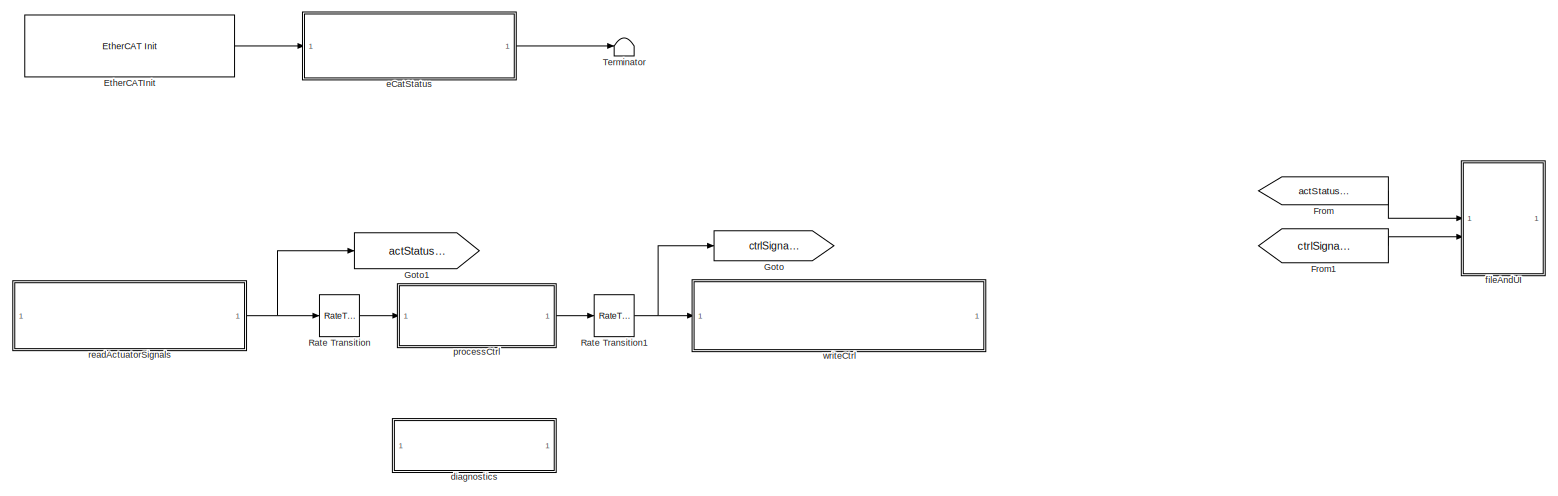
[diagram: root canvas - part 1/1, most of the canvas]
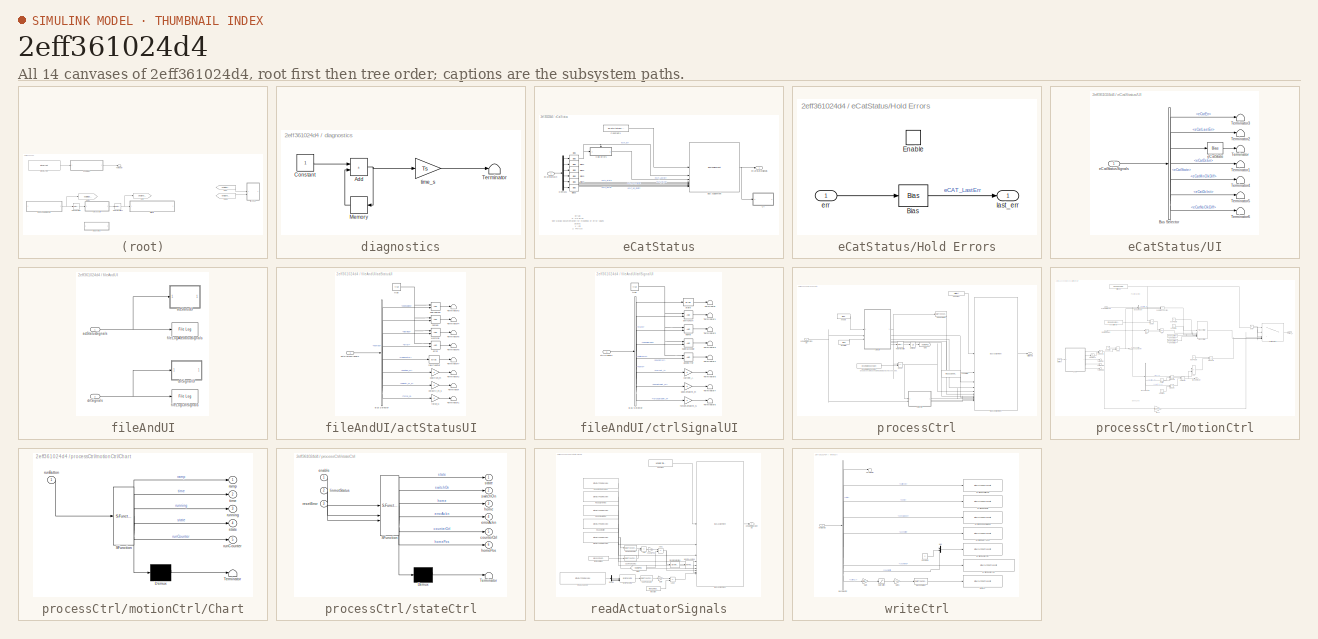
[diagram: thumbnail index - all 14 canvases of the model, root first then tree order]
MODEL slx_2eff361024d4
KIND model
CONFIG AbsTol = auto
CONFIG EnableMultiTasking = off
CONFIG FixedStep = Ts
CONFIG MaxStep = auto
CONFIG MinStep = auto
CONFIG RelTol = 1e-3
CONFIG SampleTimeConstraint = Unconstrained
CONFIG SolverName = FixedStepDiscrete
CONFIG StartTime = 0.0
CONFIG StopTime = inf
BLOCK [Reference] EtherCATInit  REF=slrealtimeethercatlib/EtherCAT Init
  Priority = 0
  SourceBlock = slrealtimeethercatlib/EtherCAT Init
  SourceType = ethercatinit
BLOCK [From] From
  GotoTag = actStatusSignals
BLOCK [From] From1
  GotoTag = ctrlSignals
BLOCK [Goto] Goto
  GotoTag = ctrlSignals
BLOCK [Goto] Goto1
  GotoTag = actStatusSignals
BLOCK [RateTransition] Rate Transition
  OutPortSampleTime = ctrlTs
BLOCK [RateTransition] Rate Transition1
  OutPortSampleTime = Ts
BLOCK [Terminator] Terminator
BLOCK [SubSystem] diagnostics
BLOCK [Sum] diagnostics/Add
  IconShape = rectangular
BLOCK [Constant] diagnostics/Constant
BLOCK [Memory] diagnostics/Memory
  NameLocation = top
BLOCK [Terminator] diagnostics/Terminator
BLOCK [Gain] diagnostics/time_s
  Gain = Ts
BLOCK [SubSystem] eCatStatus
BLOCK [Bias] eCatStatus/Bias
  SaturateOnIntegerOverflow = off
BLOCK [Bias] eCatStatus/Bias1
  SaturateOnIntegerOverflow = off
BLOCK [Bias] eCatStatus/Bias2
  SaturateOnIntegerOverflow = off
BLOCK [Bias] eCatStatus/Bias3
  SaturateOnIntegerOverflow = off
BLOCK [Bias] eCatStatus/Bias4
  SaturateOnIntegerOverflow = off
BLOCK [Bias] eCatStatus/Bias5
  SaturateOnIntegerOverflow = off
BLOCK [BusAssignment] eCatStatus/Bus Assignment
  AssignedSignals = eCatErr,eCatLastErr,eCatState,eCatDcErr,eCatMnClkDiff,eCatDcInit,eCatNsClkDiff
BLOCK [Constant] eCatStatus/Constant1
  OutDataTypeStr = Bus: eCatStatusBus
  Value = eCatStatusStruct
BLOCK [Demux] eCatStatus/Demux1
  Outputs = 6
BLOCK [SubSystem] eCatStatus/Hold Errors
  TreatAsAtomicUnit = on
BLOCK [Bias] eCatStatus/Hold Errors/Bias
  SaturateOnIntegerOverflow = off
BLOCK [EnablePort] eCatStatus/Hold Errors/Enable
BLOCK [Inport] eCatStatus/Hold Errors/err
BLOCK [Outport] eCatStatus/Hold Errors/last_err
BLOCK [SubSystem] eCatStatus/UI
BLOCK [BusSelector] eCatStatus/UI/Bus Selector
  OutputSignals = eCatErr,eCatLastErr,eCatState,eCatDcErr,eCatMnClkDiff,eCatDcInit,eCatNsClkDiff
BLOCK [Terminator] eCatStatus/UI/Terminator
BLOCK [Terminator] eCatStatus/UI/Terminator1
BLOCK [Terminator] eCatStatus/UI/Terminator2
BLOCK [Terminator] eCatStatus/UI/Terminator3
BLOCK [Terminator] eCatStatus/UI/Terminator4
BLOCK [Terminator] eCatStatus/UI/Terminator5
BLOCK [Terminator] eCatStatus/UI/Terminator6
BLOCK [Bias] eCatStatus/UI/eCatState
  Bias = 0.0
  SaturateOnIntegerOverflow = off
BLOCK [Inport] eCatStatus/UI/eCatStatusSignals
  OutDataTypeStr = Bus: eCatStatusBus
BLOCK [Inport] eCatStatus/eCatStatusIn
BLOCK [Outport] eCatStatus/eCatStatusSignals
  OutDataTypeStr = Bus: eCatStatusBus
BLOCK [SubSystem] fileAndUI
BLOCK [Inport] fileAndUI/actStatusSignals
  OutDataTypeStr = Bus: actuatorStatusBus
BLOCK [SubSystem] fileAndUI/actStatusUI
BLOCK [BusSelector] fileAndUI/actStatusUI/Bus Selector
  OutputSignals = opEnabled,homed,warning,error,rawCounter,position_m,velocity_m_s,force_N
BLOCK [Terminator] fileAndUI/actStatusUI/Terminator
BLOCK [Terminator] fileAndUI/actStatusUI/Terminator1
BLOCK [Terminator] fileAndUI/actStatusUI/Terminator2
BLOCK [Terminator] fileAndUI/actStatusUI/Terminator3
BLOCK [Terminator] fileAndUI/actStatusUI/Terminator4
BLOCK [Terminator] fileAndUI/actStatusUI/Terminator5
BLOCK [Terminator] fileAndUI/actStatusUI/Terminator6
BLOCK [Terminator] fileAndUI/actStatusUI/Terminator7
BLOCK [Inport] fileAndUI/actStatusUI/actStatusSignals
  OutDataTypeStr = Bus: actuatorStatusBus
BLOCK [Logic] fileAndUI/actStatusUI/error
  AllPortsSameDT = off
  IconShape = distinctive
  OutDataTypeStr = boolean
BLOCK [Gain] fileAndUI/actStatusUI/force_N
BLOCK [Logic] fileAndUI/actStatusUI/homed
  AllPortsSameDT = off
  IconShape = distinctive
  OutDataTypeStr = boolean
BLOCK [Logic] fileAndUI/actStatusUI/opEnabled
  AllPortsSameDT = off
  IconShape = distinctive
  OutDataTypeStr = boolean
BLOCK [Gain] fileAndUI/actStatusUI/position_m
BLOCK [Bias] fileAndUI/actStatusUI/rawCounter
  SaturateOnIntegerOverflow = off
BLOCK [Constant] fileAndUI/actStatusUI/true
  OutDataTypeStr = boolean
  Value = true
BLOCK [Gain] fileAndUI/actStatusUI/velocity_m_s
BLOCK [Logic] fileAndUI/actStatusUI/warning
  AllPortsSameDT = off
  IconShape = distinctive
  OutDataTypeStr = boolean
BLOCK [SubSystem] fileAndUI/ctrlSignalUI
BLOCK [BusSelector] fileAndUI/ctrlSignalUI/Bus Selector
  OutputSignals = state,switchOn,home,specialMode,acknError,current_A,posSetpoint_m,forceSetpoint_N
BLOCK [Terminator] fileAndUI/ctrlSignalUI/Terminator
BLOCK [Terminator] fileAndUI/ctrlSignalUI/Terminator1
BLOCK [Terminator] fileAndUI/ctrlSignalUI/Terminator2
BLOCK [Terminator] fileAndUI/ctrlSignalUI/Terminator3
BLOCK [Terminator] fileAndUI/ctrlSignalUI/Terminator4
BLOCK [Terminator] fileAndUI/ctrlSignalUI/Terminator5
BLOCK [Terminator] fileAndUI/ctrlSignalUI/Terminator6
BLOCK [Terminator] fileAndUI/ctrlSignalUI/Terminator7
BLOCK [Logic] fileAndUI/ctrlSignalUI/acknError
  AllPortsSameDT = off
  IconShape = distinctive
  OutDataTypeStr = boolean
BLOCK [Inport] fileAndUI/ctrlSignalUI/ctrlSignals
  OutDataTypeStr = Bus: ctrlBus
BLOCK [Gain] fileAndUI/ctrlSignalUI/current_A
BLOCK [Gain] fileAndUI/ctrlSignalUI/forceSetpoint_N
BLOCK [Logic] fileAndUI/ctrlSignalUI/home
  AllPortsSameDT = off
  IconShape = distinctive
  OutDataTypeStr = boolean
BLOCK [Gain] fileAndUI/ctrlSignalUI/posSetpoint_m
BLOCK [Logic] fileAndUI/ctrlSignalUI/specialMode
  AllPortsSameDT = off
  IconShape = distinctive
  OutDataTypeStr = boolean
BLOCK [Bias] fileAndUI/ctrlSignalUI/state
  SaturateOnIntegerOverflow = off
BLOCK [Logic] fileAndUI/ctrlSignalUI/switchOn
  AllPortsSameDT = off
  IconShape = distinctive
  OutDataTypeStr = boolean
BLOCK [Constant] fileAndUI/ctrlSignalUI/true
  OutDataTypeStr = boolean
  Value = true
BLOCK [Inport] fileAndUI/ctrlSignals
  OutDataTypeStr = Bus: ctrlBus
  Port = 2
BLOCK [Reference] fileAndUI/fileLogActStatusSignals  REF=slrealtimeloglib/File Log
  SourceBlock = slrealtimeloglib/File Log
  SourceType = slrealtimeloggingblock
BLOCK [Reference] fileAndUI/fileLogCtrlSignals  REF=slrealtimeloglib/File Log
  SourceBlock = slrealtimeloglib/File Log
  SourceType = slrealtimeloggingblock
BLOCK [SubSystem] processCtrl
BLOCK [BusAssignment] processCtrl/Bus Assignment
  AssignedSignals = state,switchOn,home,specialMode,acknError,counterCtrl,counterVal,current_A,posSetpoint_m,forceSetpoint_N
BLOCK [DataTypeConversion] processCtrl/Cast To uint32
  OutDataTypeStr = uint32
  RndMeth = Floor
  SaturateOnIntegerOverflow = off
BLOCK [Constant] processCtrl/Constant
  OutDataTypeStr = Bus: ctrlBus
  Value = ctrlStruct
BLOCK [Reference] processCtrl/Enumerated Constant  REF=simulink/Sources/Enumerated
Constant
  SourceBlock = simulink/Sources/Enumerated\nConstant
  SourceType = Enumerated Constant
BLOCK [RelationalOperator] processCtrl/Equal
  InputSameDT = off
  Operator = ==
  OutDataTypeStr = boolean
  RndMeth = Simplest
BLOCK [Goto] processCtrl/Goto
  GotoTag = homePos
  TagVisibility = global
BLOCK [RateTransition] processCtrl/Rate Transition
  OutPortSampleTime = Ts
BLOCK [UnitDelay] processCtrl/Unit Delay
  HasFrameUpgradeWarning = on
  SampleTime = -1
BLOCK [Inport] processCtrl/actuatorStatusSignals
BLOCK [Constant] processCtrl/counterInit
  OutDataTypeStr = uint32
  Value = el5101CounterInitVal
BLOCK [Outport] processCtrl/ctrlSignals
  OutDataTypeStr = Bus: ctrlBus
BLOCK [Constant] processCtrl/enable
  OutDataTypeStr = boolean
  Value = false
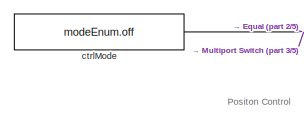
[diagram: processCtrl/motionCtrl - part 1/5, top left region]
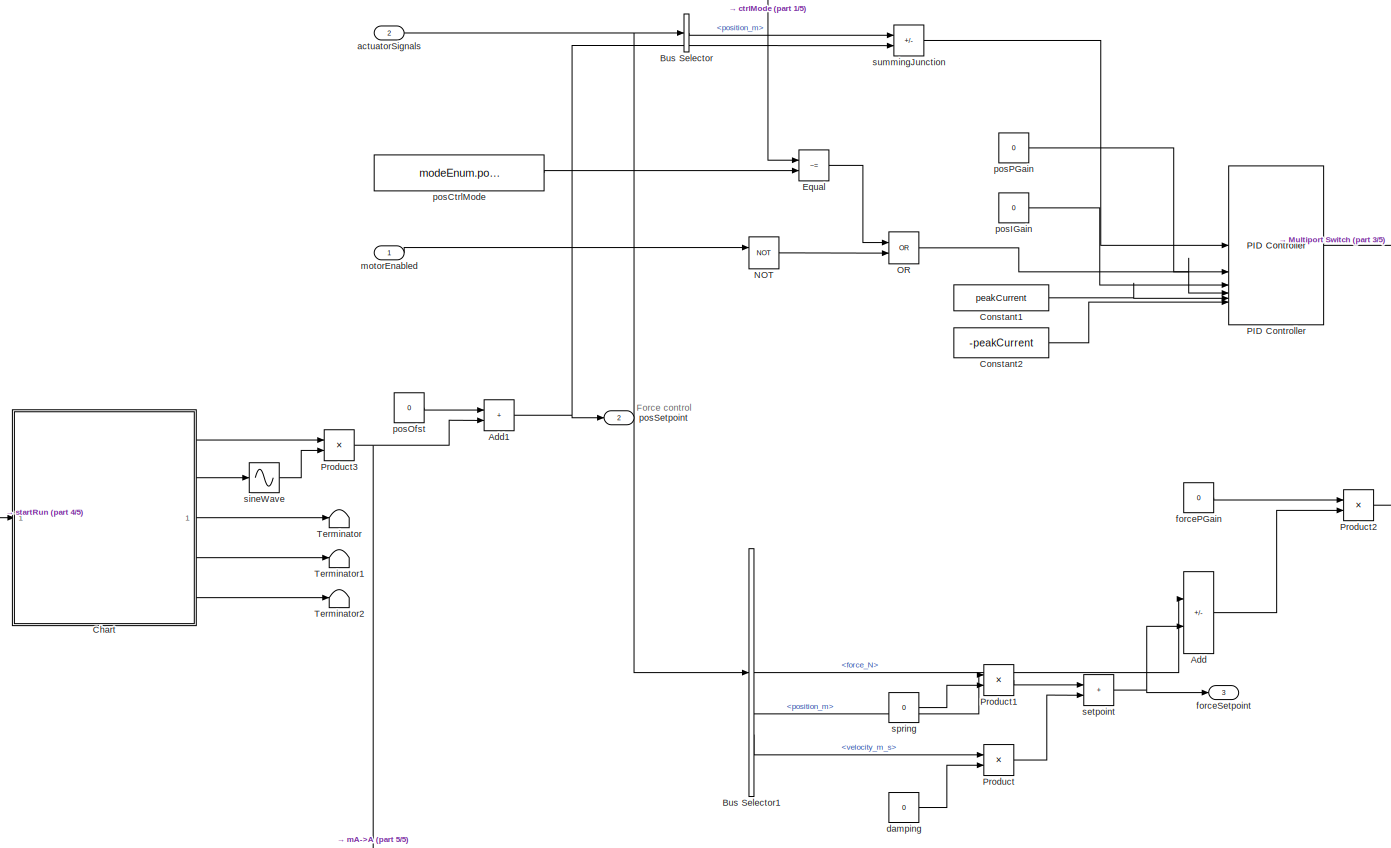
[diagram: processCtrl/motionCtrl - part 2/5, central region]
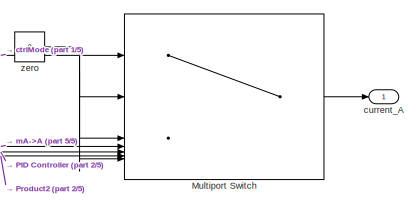
[diagram: processCtrl/motionCtrl - part 3/5, middle right region]
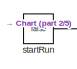
[diagram: processCtrl/motionCtrl - part 4/5, middle left region]
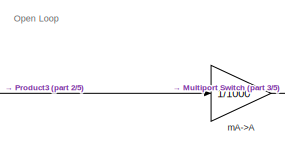
[diagram: processCtrl/motionCtrl - part 5/5, bottom center region]
BLOCK [SubSystem] processCtrl/motionCtrl
BLOCK [Sum] processCtrl/motionCtrl/Add
  IconShape = rectangular
  Inputs = +-
BLOCK [Sum] processCtrl/motionCtrl/Add1
  IconShape = rectangular
BLOCK [BusSelector] processCtrl/motionCtrl/Bus Selector
  OutputSignals = position_m
BLOCK [BusSelector] processCtrl/motionCtrl/Bus Selector1
  OutputSignals = force_N,position_m,velocity_m_s
BLOCK [SubSystem] processCtrl/motionCtrl/Chart
  ErrorFcn = Stateflow.Translate.translate
  PermitHierarchicalResolution = ExplicitOnly
  SFBlockType = Chart
  TreatAsAtomicUnit = on
BLOCK [Demux] processCtrl/motionCtrl/Chart/ Demux 
  Outputs = 1
BLOCK [S-Function] processCtrl/motionCtrl/Chart/ SFunction 
  EnableBusSupport = on
  FunctionName = sf_sfun
  Parameters = RampTime
  PortCounts = [1 6]
  SFcnIsStateOwnerBlock = off
  SFunctionDeploymentMode = off
  Tag = Stateflow S-Function 1
BLOCK [Terminator] processCtrl/motionCtrl/Chart/ Terminator 
BLOCK [Outport] processCtrl/motionCtrl/Chart/ramp
BLOCK [Inport] processCtrl/motionCtrl/Chart/runButton
BLOCK [Outport] processCtrl/motionCtrl/Chart/runCounter
  Port = 5
BLOCK [Outport] processCtrl/motionCtrl/Chart/running
  Port = 3
BLOCK [Outport] processCtrl/motionCtrl/Chart/state
  Port = 4
BLOCK [Outport] processCtrl/motionCtrl/Chart/time
  Port = 2
BLOCK [Constant] processCtrl/motionCtrl/Constant1
  Value = peakCurrent
BLOCK [Constant] processCtrl/motionCtrl/Constant2
  Value = -peakCurrent
BLOCK [RelationalOperator] processCtrl/motionCtrl/Equal
  InputSameDT = off
  Operator = ~=
  OutDataTypeStr = boolean
  RndMeth = Simplest
BLOCK [MultiPortSwitch] processCtrl/motionCtrl/Multiport Switch
  DataPortForDefault = Additional data port
  DataPortIndices = {modeEnum.undefined,modeEnum.off,modeEnum.openLoop,modeEnum.posCtrl,modeEnum.forceCtrl}
  DataPortOrder = Specify indices
  InputSameDT = off
  SaturateOnIntegerOverflow = off
BLOCK [Logic] processCtrl/motionCtrl/NOT
  AllPortsSameDT = off
  IconShape = distinctive
  Operator = NOT
  OutDataTypeStr = boolean
BLOCK [Logic] processCtrl/motionCtrl/OR
  AllPortsSameDT = off
  IconShape = distinctive
  Operator = OR
  OutDataTypeStr = boolean
BLOCK [Reference] processCtrl/motionCtrl/PID Controller  REF=slpidlib/PID Controller
  LibrarySourceBlock = simulink/Continuous/PID Controller
  SourceBlock = slpidlib/PID Controller
  SourceType = PID 1dof
BLOCK [Product] processCtrl/motionCtrl/Product
BLOCK [Product] processCtrl/motionCtrl/Product1
BLOCK [Product] processCtrl/motionCtrl/Product2
BLOCK [Product] processCtrl/motionCtrl/Product3
BLOCK [Terminator] processCtrl/motionCtrl/Terminator
BLOCK [Terminator] processCtrl/motionCtrl/Terminator1
BLOCK [Terminator] processCtrl/motionCtrl/Terminator2
BLOCK [Inport] processCtrl/motionCtrl/actuatorSignals
  OutDataTypeStr = Bus: actuatorStatusBus
  Port = 2
BLOCK [Constant] processCtrl/motionCtrl/ctrlMode
  OutDataTypeStr = Enum: modeEnum
  Value = modeEnum.off
BLOCK [Outport] processCtrl/motionCtrl/current_A
BLOCK [Constant] processCtrl/motionCtrl/damping
  Value = 0
BLOCK [Constant] processCtrl/motionCtrl/forcePGain
  Value = 0
BLOCK [Outport] processCtrl/motionCtrl/forceSetpoint
  Port = 3
BLOCK [Gain] processCtrl/motionCtrl/mA->A
  Gain = 1/1000
BLOCK [Inport] processCtrl/motionCtrl/motorEnabled
BLOCK [Constant] processCtrl/motionCtrl/posCtrlMode
  OutDataTypeStr = Enum: modeEnum
  Value = modeEnum.posCtrl
BLOCK [Constant] processCtrl/motionCtrl/posIGain
  Value = 0
BLOCK [Constant] processCtrl/motionCtrl/posOfst
  Value = 0
BLOCK [Constant] processCtrl/motionCtrl/posPGain
  Value = 0
BLOCK [Outport] processCtrl/motionCtrl/posSetpoint
  Port = 2
BLOCK [Sum] processCtrl/motionCtrl/setpoint
  IconShape = rectangular
BLOCK [Sin] processCtrl/motionCtrl/sineWave
  Amplitude = 0
  Frequency = 0.5
  SampleTime = 0
  TimeSource = Use external signal
BLOCK [Constant] processCtrl/motionCtrl/spring
  Value = 0
BLOCK [Constant] processCtrl/motionCtrl/startRun
  OutDataTypeStr = boolean
  Value = false
BLOCK [Sum] processCtrl/motionCtrl/summingJunction
  IconShape = rectangular
  Inputs = -+
BLOCK [Constant] processCtrl/motionCtrl/zero
  Value = 0
BLOCK [Constant] processCtrl/resetError
  OutDataTypeStr = boolean
  Value = false
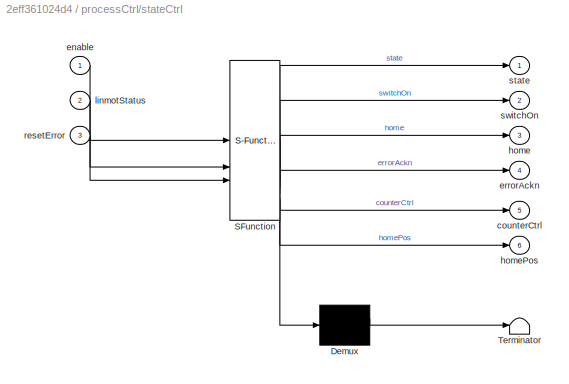
BLOCK [SubSystem] processCtrl/stateCtrl
  ErrorFcn = Stateflow.Translate.translate
  PermitHierarchicalResolution = ExplicitOnly
  SFBlockType = Chart
  TreatAsAtomicUnit = on
BLOCK [Demux] processCtrl/stateCtrl/ Demux 
  Outputs = 1
BLOCK [S-Function] processCtrl/stateCtrl/ SFunction 
  EnableBusSupport = on
  FunctionName = sf_sfun
  Parameters = el5101SetCounterCmd
  PortCounts = [3 7]
  SFcnIsStateOwnerBlock = off
  SFunctionDeploymentMode = off
  Tag = Stateflow S-Function 3
BLOCK [Terminator] processCtrl/stateCtrl/ Terminator 
BLOCK [Outport] processCtrl/stateCtrl/counterCtrl
  Port = 5
BLOCK [Inport] processCtrl/stateCtrl/enable
BLOCK [Outport] processCtrl/stateCtrl/errorAckn
  Port = 4
BLOCK [Outport] processCtrl/stateCtrl/home
  Port = 3
BLOCK [Outport] processCtrl/stateCtrl/homePos
  Port = 6
BLOCK [Inport] processCtrl/stateCtrl/linmotStatus
  Port = 2
BLOCK [Inport] processCtrl/stateCtrl/resetError
  Port = 3
BLOCK [Outport] processCtrl/stateCtrl/state
BLOCK [Outport] processCtrl/stateCtrl/switchOn
  Port = 2
BLOCK [SubSystem] readActuatorSignals
BLOCK [Sum] readActuatorSignals/Add
  IconShape = rectangular
  Inputs = +-
BLOCK [Sum] readActuatorSignals/Add1
  IconShape = rectangular
  Inputs = +-
BLOCK [Sum] readActuatorSignals/Add2
  IconShape = rectangular
  Inputs = +-
BLOCK [BusAssignment] readActuatorSignals/Bus Assignment
  AssignedSignals = opEnabled,homed,warning,error,rawCounter,position_m,velocity_m_s,force_N
BLOCK [Reference] readActuatorSignals/Byte Packing  REF=slrealtimeutilitieslib/Byte Packing
  SourceBlock = slrealtimeutilitieslib/Byte Packing
  SourceType = slrealtimebytepacking
BLOCK [DataTypeConversion] readActuatorSignals/Cast To Double
  OutDataTypeStr = double
  RndMeth = Floor
  SaturateOnIntegerOverflow = off
BLOCK [DataTypeConversion] readActuatorSignals/Cast To Double1
  OutDataTypeStr = double
  RndMeth = Floor
  SaturateOnIntegerOverflow = off
BLOCK [DataTypeConversion] readActuatorSignals/Cast To Double2
  OutDataTypeStr = double
  RndMeth = Floor
  SaturateOnIntegerOverflow = off
BLOCK [Constant] readActuatorSignals/Constant
  OutDataTypeStr = Bus: actuatorStatusBus
  Value = actuatorStatusStruct
BLOCK [Demux] readActuatorSignals/Demux
BLOCK [Reference] readActuatorSignals/Discrete Derivative  REF=simulink/Discrete/Discrete Derivative
  SourceBlock = simulink/Discrete/Discrete Derivative
  SourceType = Discrete Derivative
BLOCK [Reference] readActuatorSignals/EtherCAT PDO Receive  REF=slrealtimeethercatlib/EtherCAT PDO Receive
  Priority = 2
  SourceBlock = slrealtimeethercatlib/EtherCAT PDO Receive
  SourceType = ethercat_pdo_receive
BLOCK [From] readActuatorSignals/From
  GotoTag = homePos
  TagVisibility = global
BLOCK [Gain] readActuatorSignals/Gain
  Gain = loadCellScale
BLOCK [Reference] readActuatorSignals/Moving Average  REF=dspstat3/Moving
Average
  SourceBlock = dspstat3/Moving\nAverage
  SourceType = dsp.simulink.MovingAverage
BLOCK [Reference] readActuatorSignals/ReadDI1OpEnabled  REF=slrealtimeethercatlib/EtherCAT PDO Receive
  Priority = 2
  SourceBlock = slrealtimeethercatlib/EtherCAT PDO Receive
  SourceType = ethercat_pdo_receive
BLOCK [Reference] readActuatorSignals/ReadDI2Homed  REF=slrealtimeethercatlib/EtherCAT PDO Receive
  Priority = 2
  SourceBlock = slrealtimeethercatlib/EtherCAT PDO Receive
  SourceType = ethercat_pdo_receive
BLOCK [Reference] readActuatorSignals/ReadDI3Warning  REF=slrealtimeethercatlib/EtherCAT PDO Receive
  Priority = 2
  SourceBlock = slrealtimeethercatlib/EtherCAT PDO Receive
  SourceType = ethercat_pdo_receive
BLOCK [Reference] readActuatorSignals/ReadDI4Error  REF=slrealtimeethercatlib/EtherCAT PDO Receive
  Priority = 2
  SourceBlock = slrealtimeethercatlib/EtherCAT PDO Receive
  SourceType = ethercat_pdo_receive
BLOCK [Reference] readActuatorSignals/ReadLoadCell  REF=slrealtimeethercatlib/EtherCAT PDO Receive
  Priority = 2
  SourceBlock = slrealtimeethercatlib/EtherCAT PDO Receive
  SourceType = ethercat_pdo_receive
BLOCK [Outport] readActuatorSignals/actuatorStatusSignals
  OutDataTypeStr = Bus: actuatorStatusBus
BLOCK [Gain] readActuatorSignals/count2Pos
  Gain = encoderPosGain
BLOCK [Constant] readActuatorSignals/forceOfst
  Value = forceZeroOfst
BLOCK [Constant] readActuatorSignals/removeInitVal
  Value = el5101CounterInitVal
BLOCK [SubSystem] writeCtrl
BLOCK [BusSelector] writeCtrl/Bus Selector
  OutputSignals = state,switchOn,home,specialMode,acknError,counterCtrl,counterVal,current_A
BLOCK [Constant] writeCtrl/Constant1
  OutDataTypeStr = uint8
  Value = 0
BLOCK [Gain] writeCtrl/Gain
  Gain = ctrlSignalScale
BLOCK [Gain] writeCtrl/Gain1
  Gain = 2^15/10
BLOCK [Mux] writeCtrl/Mux
  DisplayOption = bar
  Inputs = 2
BLOCK [Saturate] writeCtrl/Saturation
  LowerLimit = -10
  UpperLimit = 10
BLOCK [Terminator] writeCtrl/Terminator
BLOCK [Reference] writeCtrl/WriteCounterCtrl  REF=slrealtimeethercatlib/EtherCAT PDO Transmit
  Priority = 3
  SourceBlock = slrealtimeethercatlib/EtherCAT PDO Transmit
  SourceType = ethercat_pdo_send
BLOCK [Reference] writeCtrl/WriteCounterVal  REF=slrealtimeethercatlib/EtherCAT PDO Transmit
  Priority = 3
  SourceBlock = slrealtimeethercatlib/EtherCAT PDO Transmit
  SourceType = ethercat_pdo_send
BLOCK [Reference] writeCtrl/WriteDO1SwitchOn  REF=slrealtimeethercatlib/EtherCAT PDO Transmit
  Priority = 3
  SourceBlock = slrealtimeethercatlib/EtherCAT PDO Transmit
  SourceType = ethercat_pdo_send
BLOCK [Reference] writeCtrl/WriteDO2Home  REF=slrealtimeethercatlib/EtherCAT PDO Transmit
  Priority = 3
  SourceBlock = slrealtimeethercatlib/EtherCAT PDO Transmit
  SourceType = ethercat_pdo_send
BLOCK [Reference] writeCtrl/WriteDO3SpecialMode  REF=slrealtimeethercatlib/EtherCAT PDO Transmit
  Priority = 3
  SourceBlock = slrealtimeethercatlib/EtherCAT PDO Transmit
  SourceType = ethercat_pdo_send
BLOCK [Reference] writeCtrl/WriteDO4ErrAckn  REF=slrealtimeethercatlib/EtherCAT PDO Transmit
  Priority = 3
  SourceBlock = slrealtimeethercatlib/EtherCAT PDO Transmit
  SourceType = ethercat_pdo_send
BLOCK [Inport] writeCtrl/ctrlSignals
  OutDataTypeStr = Bus: ctrlBus
BLOCK [DataTypeConversion] writeCtrl/el4132Output
  OutDataTypeStr = int16
  OutMax = 2^15-1
  OutMin = -2^15+1
  RndMeth = Floor
BLOCK [Reference] writeCtrl/writeAO  REF=slrealtimeethercatlib/EtherCAT PDO Transmit
  Priority = 3
  SourceBlock = slrealtimeethercatlib/EtherCAT PDO Transmit
  SourceType = ethercat_pdo_send
ANNOTATION eCatStatus: ErrVal: 0: No error See Matlab documentation for meanings of error values States: 1: Init 2: Pre-Op 4: Safe_Op 8: Op DCErrVal: 0: No error (or distributed clocks not enabled) MasterToNetworkClkDiff: #: Difference in nanoseconds between master and first slave clocks DCInitState: 0: Not initialized (or not enabled in xml) 1: Started NetworkToSlaveClkDiff: #: Difference in nanoseconds between first s...<+30ch>
ANNOTATION processCtrl: Enable special mode. Hold integrator at zero unless enabled.
ANNOTATION processCtrl/motionCtrl: Force control
ANNOTATION processCtrl/motionCtrl: Open Loop
ANNOTATION processCtrl/motionCtrl: Positon Control
LINE EtherCATInit:1 -> eCatStatus:1
LINE From1:1 -> fileAndUI:2
LINE From:1 -> fileAndUI:1
NET Rate Transition1:1 -> Goto:1, writeCtrl:1
LINE Rate Transition:1 -> processCtrl:1
NET diagnostics/Add:1 -> diagnostics/Memory:1, diagnostics/time_s:1
LINE diagnostics/Constant:1 -> diagnostics/Add:1
LINE diagnostics/Memory:1 -> diagnostics/Add:2
LINE diagnostics/time_s:1 -> diagnostics/Terminator:1
LINE eCatStatus/Bias1:1 -> eCatStatus/Bus Assignment:4
LINE eCatStatus/Bias2:1 -> eCatStatus/Bus Assignment:5
LINE eCatStatus/Bias3:1 -> eCatStatus/Bus Assignment:6
LINE eCatStatus/Bias4:1 -> eCatStatus/Bus Assignment:7
LINE eCatStatus/Bias5:1 -> eCatStatus/Bus Assignment:8
NET eCatStatus/Bias:1 -> eCatStatus/Bus Assignment:2, eCatStatus/Hold Errors:1, eCatStatus/Hold Errors:enable
NET eCatStatus/Bus Assignment:1 -> eCatStatus/UI:1, eCatStatus/eCatStatusSignals:1
LINE eCatStatus/Constant1:1 -> eCatStatus/Bus Assignment:1
LINE eCatStatus/Demux1:1 -> eCatStatus/Bias:1
LINE eCatStatus/Demux1:2 -> eCatStatus/Bias1:1
LINE eCatStatus/Demux1:3 -> eCatStatus/Bias2:1
LINE eCatStatus/Demux1:4 -> eCatStatus/Bias3:1
LINE eCatStatus/Demux1:5 -> eCatStatus/Bias4:1
LINE eCatStatus/Demux1:6 -> eCatStatus/Bias5:1
LINE eCatStatus/Hold Errors/Bias:1 -> eCatStatus/Hold Errors/last_err:1
LINE eCatStatus/Hold Errors/err:1 -> eCatStatus/Hold Errors/Bias:1
LINE eCatStatus/Hold Errors:1 -> eCatStatus/Bus Assignment:3
LINE eCatStatus/UI/Bus Selector:1 -> eCatStatus/UI/Terminator3:1
LINE eCatStatus/UI/Bus Selector:2 -> eCatStatus/UI/Terminator2:1
LINE eCatStatus/UI/Bus Selector:3 -> eCatStatus/UI/eCatState:1
LINE eCatStatus/UI/Bus Selector:4 -> eCatStatus/UI/Terminator1:1
LINE eCatStatus/UI/Bus Selector:5 -> eCatStatus/UI/Terminator4:1
LINE eCatStatus/UI/Bus Selector:6 -> eCatStatus/UI/Terminator5:1
LINE eCatStatus/UI/Bus Selector:7 -> eCatStatus/UI/Terminator6:1
LINE eCatStatus/UI/eCatState:1 -> eCatStatus/UI/Terminator:1
LINE eCatStatus/UI/eCatStatusSignals:1 -> eCatStatus/UI/Bus Selector:1
LINE eCatStatus/eCatStatusIn:1 -> eCatStatus/Demux1:1
LINE eCatStatus:1 -> Terminator:1
NET fileAndUI/actStatusSignals:1 -> fileAndUI/actStatusUI:1, fileAndUI/fileLogActStatusSignals:1
LINE fileAndUI/actStatusUI/Bus Selector:1 -> fileAndUI/actStatusUI/opEnabled:2
LINE fileAndUI/actStatusUI/Bus Selector:2 -> fileAndUI/actStatusUI/homed:2
LINE fileAndUI/actStatusUI/Bus Selector:3 -> fileAndUI/actStatusUI/warning:2
LINE fileAndUI/actStatusUI/Bus Selector:4 -> fileAndUI/actStatusUI/error:2
LINE fileAndUI/actStatusUI/Bus Selector:5 -> fileAndUI/actStatusUI/rawCounter:1
LINE fileAndUI/actStatusUI/Bus Selector:6 -> fileAndUI/actStatusUI/position_m:1
LINE fileAndUI/actStatusUI/Bus Selector:7 -> fileAndUI/actStatusUI/velocity_m_s:1
LINE fileAndUI/actStatusUI/Bus Selector:8 -> fileAndUI/actStatusUI/force_N:1
LINE fileAndUI/actStatusUI/actStatusSignals:1 -> fileAndUI/actStatusUI/Bus Selector:1
LINE fileAndUI/actStatusUI/error:1 -> fileAndUI/actStatusUI/Terminator6:1
LINE fileAndUI/actStatusUI/force_N:1 -> fileAndUI/actStatusUI/Terminator1:1
LINE fileAndUI/actStatusUI/homed:1 -> fileAndUI/actStatusUI/Terminator4:1
LINE fileAndUI/actStatusUI/opEnabled:1 -> fileAndUI/actStatusUI/Terminator3:1
LINE fileAndUI/actStatusUI/position_m:1 -> fileAndUI/actStatusUI/Terminator2:1
LINE fileAndUI/actStatusUI/rawCounter:1 -> fileAndUI/actStatusUI/Terminator7:1
NET fileAndUI/actStatusUI/true:1 -> fileAndUI/actStatusUI/error:1, fileAndUI/actStatusUI/homed:1, fileAndUI/actStatusUI/opEnabled:1, fileAndUI/actStatusUI/warning:1
LINE fileAndUI/actStatusUI/velocity_m_s:1 -> fileAndUI/actStatusUI/Terminator:1
LINE fileAndUI/actStatusUI/warning:1 -> fileAndUI/actStatusUI/Terminator5:1
LINE fileAndUI/ctrlSignalUI/Bus Selector:1 -> fileAndUI/ctrlSignalUI/state:1
LINE fileAndUI/ctrlSignalUI/Bus Selector:2 -> fileAndUI/ctrlSignalUI/switchOn:2
LINE fileAndUI/ctrlSignalUI/Bus Selector:3 -> fileAndUI/ctrlSignalUI/home:2
LINE fileAndUI/ctrlSignalUI/Bus Selector:4 -> fileAndUI/ctrlSignalUI/specialMode:2
LINE fileAndUI/ctrlSignalUI/Bus Selector:5 -> fileAndUI/ctrlSignalUI/acknError:2
LINE fileAndUI/ctrlSignalUI/Bus Selector:6 -> fileAndUI/ctrlSignalUI/current_A:1
LINE fileAndUI/ctrlSignalUI/Bus Selector:7 -> fileAndUI/ctrlSignalUI/posSetpoint_m:1
LINE fileAndUI/ctrlSignalUI/Bus Selector:8 -> fileAndUI/ctrlSignalUI/forceSetpoint_N:1
LINE fileAndUI/ctrlSignalUI/acknError:1 -> fileAndUI/ctrlSignalUI/Terminator4:1
LINE fileAndUI/ctrlSignalUI/ctrlSignals:1 -> fileAndUI/ctrlSignalUI/Bus Selector:1
LINE fileAndUI/ctrlSignalUI/current_A:1 -> fileAndUI/ctrlSignalUI/Terminator5:1
LINE fileAndUI/ctrlSignalUI/forceSetpoint_N:1 -> fileAndUI/ctrlSignalUI/Terminator6:1
LINE fileAndUI/ctrlSignalUI/home:1 -> fileAndUI/ctrlSignalUI/Terminator2:1
LINE fileAndUI/ctrlSignalUI/posSetpoint_m:1 -> fileAndUI/ctrlSignalUI/Terminator7:1
LINE fileAndUI/ctrlSignalUI/specialMode:1 -> fileAndUI/ctrlSignalUI/Terminator3:1
LINE fileAndUI/ctrlSignalUI/state:1 -> fileAndUI/ctrlSignalUI/Terminator:1
LINE fileAndUI/ctrlSignalUI/switchOn:1 -> fileAndUI/ctrlSignalUI/Terminator1:1
NET fileAndUI/ctrlSignalUI/true:1 -> fileAndUI/ctrlSignalUI/acknError:1, fileAndUI/ctrlSignalUI/home:1, fileAndUI/ctrlSignalUI/specialMode:1, fileAndUI/ctrlSignalUI/switchOn:1
NET fileAndUI/ctrlSignals:1 -> fileAndUI/ctrlSignalUI:1, fileAndUI/fileLogCtrlSignals:1
LINE processCtrl/Bus Assignment:1 -> processCtrl/ctrlSignals:1
LINE processCtrl/Cast To uint32:1 -> processCtrl/Bus Assignment:2
LINE processCtrl/Constant:1 -> processCtrl/Bus Assignment:1
LINE processCtrl/Enumerated Constant:1 -> processCtrl/Equal:2
NET processCtrl/Equal:1 -> processCtrl/Bus Assignment:5, processCtrl/motionCtrl:1
LINE processCtrl/Rate Transition:1 -> processCtrl/Unit Delay:1
LINE processCtrl/Unit Delay:1 -> processCtrl/Goto:1
NET processCtrl/actuatorStatusSignals:1 -> processCtrl/motionCtrl:2, processCtrl/stateCtrl:2
LINE processCtrl/counterInit:1 -> processCtrl/Bus Assignment:8
LINE processCtrl/enable:1 -> processCtrl/stateCtrl:1
NET processCtrl/motionCtrl/Add1:1 -> processCtrl/motionCtrl/posSetpoint:1, processCtrl/motionCtrl/summingJunction:2
LINE processCtrl/motionCtrl/Add:1 -> processCtrl/motionCtrl/Product2:2
LINE processCtrl/motionCtrl/Bus Selector1:1 -> processCtrl/motionCtrl/Add:1
LINE processCtrl/motionCtrl/Bus Selector1:2 -> processCtrl/motionCtrl/Product1:1
LINE processCtrl/motionCtrl/Bus Selector1:3 -> processCtrl/motionCtrl/Product:1
LINE processCtrl/motionCtrl/Bus Selector:1 -> processCtrl/motionCtrl/summingJunction:1
LINE processCtrl/motionCtrl/Chart:1 -> processCtrl/motionCtrl/Product3:1
LINE processCtrl/motionCtrl/Chart:2 -> processCtrl/motionCtrl/sineWave:1
LINE processCtrl/motionCtrl/Chart:3 -> processCtrl/motionCtrl/Terminator:1
LINE processCtrl/motionCtrl/Chart:4 -> processCtrl/motionCtrl/Terminator1:1
LINE processCtrl/motionCtrl/Chart:5 -> processCtrl/motionCtrl/Terminator2:1
LINE processCtrl/motionCtrl/Constant1:1 -> processCtrl/motionCtrl/PID Controller:5
LINE processCtrl/motionCtrl/Constant2:1 -> processCtrl/motionCtrl/PID Controller:6
LINE processCtrl/motionCtrl/Equal:1 -> processCtrl/motionCtrl/OR:1
LINE processCtrl/motionCtrl/Multiport Switch:1 -> processCtrl/motionCtrl/current_A:1
LINE processCtrl/motionCtrl/NOT:1 -> processCtrl/motionCtrl/OR:2
LINE processCtrl/motionCtrl/OR:1 -> processCtrl/motionCtrl/PID Controller:4
LINE processCtrl/motionCtrl/PID Controller:1 -> processCtrl/motionCtrl/Multiport Switch:5
LINE processCtrl/motionCtrl/Product1:1 -> processCtrl/motionCtrl/setpoint:1
LINE processCtrl/motionCtrl/Product2:1 -> processCtrl/motionCtrl/Multiport Switch:6
NET processCtrl/motionCtrl/Product3:1 -> processCtrl/motionCtrl/Add1:2, processCtrl/motionCtrl/mA->A:1
LINE processCtrl/motionCtrl/Product:1 -> processCtrl/motionCtrl/setpoint:2
NET processCtrl/motionCtrl/actuatorSignals:1 -> processCtrl/motionCtrl/Bus Selector1:1, processCtrl/motionCtrl/Bus Selector:1
NET processCtrl/motionCtrl/ctrlMode:1 -> processCtrl/motionCtrl/Equal:1, processCtrl/motionCtrl/Multiport Switch:1
LINE processCtrl/motionCtrl/damping:1 -> processCtrl/motionCtrl/Product:2
LINE processCtrl/motionCtrl/forcePGain:1 -> processCtrl/motionCtrl/Product2:1
LINE processCtrl/motionCtrl/mA->A:1 -> processCtrl/motionCtrl/Multiport Switch:4
LINE processCtrl/motionCtrl/motorEnabled:1 -> processCtrl/motionCtrl/NOT:1
LINE processCtrl/motionCtrl/posCtrlMode:1 -> processCtrl/motionCtrl/Equal:2
LINE processCtrl/motionCtrl/posIGain:1 -> processCtrl/motionCtrl/PID Controller:3
LINE processCtrl/motionCtrl/posOfst:1 -> processCtrl/motionCtrl/Add1:1
LINE processCtrl/motionCtrl/posPGain:1 -> processCtrl/motionCtrl/PID Controller:2
NET processCtrl/motionCtrl/setpoint:1 -> processCtrl/motionCtrl/Add:2, processCtrl/motionCtrl/forceSetpoint:1
LINE processCtrl/motionCtrl/sineWave:1 -> processCtrl/motionCtrl/Product3:2
LINE processCtrl/motionCtrl/spring:1 -> processCtrl/motionCtrl/Product1:2
LINE processCtrl/motionCtrl/startRun:1 -> processCtrl/motionCtrl/Chart:1
LINE processCtrl/motionCtrl/summingJunction:1 -> processCtrl/motionCtrl/PID Controller:1
NET processCtrl/motionCtrl/zero:1 -> processCtrl/motionCtrl/Multiport Switch:2, processCtrl/motionCtrl/Multiport Switch:3, processCtrl/motionCtrl/Multiport Switch:7
LINE processCtrl/motionCtrl:1 -> processCtrl/Bus Assignment:9
LINE processCtrl/motionCtrl:2 -> processCtrl/Bus Assignment:10
LINE processCtrl/motionCtrl:3 -> processCtrl/Bus Assignment:11
LINE processCtrl/resetError:1 -> processCtrl/stateCtrl:3
NET processCtrl/stateCtrl:1 -> processCtrl/Cast To uint32:1, processCtrl/Equal:1
LINE processCtrl/stateCtrl:2 -> processCtrl/Bus Assignment:3
LINE processCtrl/stateCtrl:3 -> processCtrl/Bus Assignment:4
LINE processCtrl/stateCtrl:4 -> processCtrl/Bus Assignment:6
LINE processCtrl/stateCtrl:5 -> processCtrl/Bus Assignment:7
LINE processCtrl/stateCtrl:6 -> processCtrl/Rate Transition:1
LINE processCtrl:1 -> Rate Transition1:1
NET readActuatorSignals/Add1:1 -> readActuatorSignals/Bus Assignment:7, readActuatorSignals/Discrete Derivative:1
LINE readActuatorSignals/Add2:1 -> readActuatorSignals/Bus Assignment:9
LINE readActuatorSignals/Add:1 -> readActuatorSignals/count2Pos:1
LINE readActuatorSignals/Bus Assignment:1 -> readActuatorSignals/actuatorStatusSignals:1
LINE readActuatorSignals/Byte Packing:1 -> readActuatorSignals/Cast To Double:1
LINE readActuatorSignals/Cast To Double1:1 -> readActuatorSignals/Add:1
LINE readActuatorSignals/Cast To Double2:1 -> readActuatorSignals/Add:2
LINE readActuatorSignals/Cast To Double:1 -> readActuatorSignals/Gain:1
LINE readActuatorSignals/Constant:1 -> readActuatorSignals/Bus Assignment:1
LINE readActuatorSignals/Demux:1 -> readActuatorSignals/Byte Packing:1
LINE readActuatorSignals/Demux:2 -> readActuatorSignals/Byte Packing:2
LINE readActuatorSignals/Demux:3 -> readActuatorSignals/Byte Packing:3
LINE readActuatorSignals/Demux:4 -> readActuatorSignals/Byte Packing:4
LINE readActuatorSignals/Discrete Derivative:1 -> readActuatorSignals/Moving Average:1
NET readActuatorSignals/EtherCAT PDO Receive:1 -> readActuatorSignals/Bus Assignment:6, readActuatorSignals/Cast To Double1:1
LINE readActuatorSignals/From:1 -> readActuatorSignals/Add1:2
LINE readActuatorSignals/Gain:1 -> readActuatorSignals/Add2:1
LINE readActuatorSignals/Moving Average:1 -> readActuatorSignals/Bus Assignment:8
LINE readActuatorSignals/ReadDI1OpEnabled:1 -> readActuatorSignals/Bus Assignment:2
LINE readActuatorSignals/ReadDI2Homed:1 -> readActuatorSignals/Bus Assignment:3
LINE readActuatorSignals/ReadDI3Warning:1 -> readActuatorSignals/Bus Assignment:4
LINE readActuatorSignals/ReadDI4Error:1 -> readActuatorSignals/Bus Assignment:5
LINE readActuatorSignals/ReadLoadCell:1 -> readActuatorSignals/Demux:1
LINE readActuatorSignals/count2Pos:1 -> readActuatorSignals/Add1:1
LINE readActuatorSignals/forceOfst:1 -> readActuatorSignals/Add2:2
LINE readActuatorSignals/removeInitVal:1 -> readActuatorSignals/Cast To Double2:1
NET readActuatorSignals:1 -> Goto1:1, Rate Transition:1
LINE writeCtrl/Bus Selector:1 -> writeCtrl/Terminator:1
LINE writeCtrl/Bus Selector:2 -> writeCtrl/WriteDO1SwitchOn:1
LINE writeCtrl/Bus Selector:3 -> writeCtrl/WriteDO2Home:1
LINE writeCtrl/Bus Selector:4 -> writeCtrl/WriteDO3SpecialMode:1
LINE writeCtrl/Bus Selector:5 -> writeCtrl/WriteDO4ErrAckn:1
LINE writeCtrl/Bus Selector:6 -> writeCtrl/Mux:1
LINE writeCtrl/Bus Selector:7 -> writeCtrl/WriteCounterVal:1
LINE writeCtrl/Bus Selector:8 -> writeCtrl/Gain:1
LINE writeCtrl/Constant1:1 -> writeCtrl/Mux:2
LINE writeCtrl/Gain1:1 -> writeCtrl/el4132Output:1
LINE writeCtrl/Gain:1 -> writeCtrl/Saturation:1
LINE writeCtrl/Mux:1 -> writeCtrl/WriteCounterCtrl:1
LINE writeCtrl/Saturation:1 -> writeCtrl/Gain1:1
LINE writeCtrl/ctrlSignals:1 -> writeCtrl/Bus Selector:1
LINE writeCtrl/el4132Output:1 -> writeCtrl/writeAO:1
note: NET lines group one-source signal fan-out (src -> all destinations, sorted); 1:1 wires keep LINE
CHART processCtrl/stateCtrl states=9 transitions=33
  STATE_LABEL 'init\nentry:\nstate = linmotStateEnum.init;\nswitchOn = false;\nhome = false;\nerrorAckn = false;\ncounterCtrl = uint8(0);\nhomePos = 0;'
  STATE_LABEL 'settingCounter\nentry:\nstate = linmotStateEnum.settingCounter;\nswitchOn = false;\nhome = false;\nerrorAckn = false;\ncounterCtrl = el5101SetCounterCmd;'
  STATE_LABEL 'readyToEnable\nentry:\nstate = linmotStateEnum.readyToEnable;\nswitchOn = false;\nhome = false;\nerrorAckn = false;\ncounterCtrl = uint8(0);'
  STATE_LABEL 'switchingOn\nentry:\nstate = linmotStateEnum.switchingOn;\nswitchOn = true;\nhome = false;\nerrorAckn = false;\ncounterCtrl = uint8(0);'
  STATE_LABEL 'homing\nentry:\nstate = linmotStateEnum.homing;\nswitchOn = true;\nhome = true;\nerrorAckn = false;\ncounterCtrl = uint8(0);\n'
  STATE_LABEL 'resettingError\nentry:\nstate = linmotStateEnum.resettingError;\nswitchOn = false;\nhome = false;\nerrorAckn = true;'
  STATE_LABEL 'settingHomePos\nentry:\nstate = linmotStateEnum.settingHomePos;\nswitchOn = true;\nhome = true;\nerrorAckn = false;\ncounterCtrl = uint8(0);\nhomePos = linmotStatus.position_m;'
  STATE_LABEL 'error\nentry:\nstate = linmotStateEnum.error;\nswitchOn = false;\nhome = false;\nerrorAckn = false;'
  STATE_LABEL 'enabled\nentry:\nstate = linmotStateEnum.enabled;\nswitchOn = true;\nhome = false;\nerrorAckn = false;\ncounterCtrl = uint8(0);'
CHART processCtrl/motionCtrl/Chart states=5 transitions=7
  STATE_LABEL 'init\nentry:\nstate = expCtrlStateEnum.init;\nrunning = false;\nramp=0;\nrampLast=0;\ntime = 0;\nrampUpTime = 0;\nrunTime = 0;\nrunCounter = uint32(0);\n'
  STATE_LABEL 'idle\nentry:\nstate = expCtrlStateEnum.idle;\nrunning = false;\nduring:\nramp=0;\nrampLast=0;\ntime = 0;\nrampUpTime = 0;\nrunTime = 0;\nrunCounter = uint32(0);\n'
  STATE_LABEL "rampingUp\nentry:\nstate = expCtrlStateEnum.rampingUp;\nrunCounter = runCounter + uint32(1);\nrunning = true;\nduring:\nrampUpTime = elapsed('sec');\nramp=min(1, (rampUpTime/RampTime));\nrampLast = ramp;\ntime = rampUpTime;"
  STATE_LABEL "runningState\nentry:\nstate = expCtrlStateEnum.running;\nrunning = true;\nduring:\nramp=1;\nrampLast = ramp;\nrunTime = elapsed('sec');\ntime = rampUpTime + runTime;\n"
  STATE_LABEL "rampdown\nentry:\nstate = expCtrlStateEnum.rampingDown;\nrunning = true;\nduring:\nrampDownTime = elapsed('sec')\nramp=rampLast - max(0, (rampDownTime/RampTime))\ntime = rampUpTime + runTime + elapsed('sec');"
CHART  states=0 transitions=0
CHART  states=0 transitions=0
